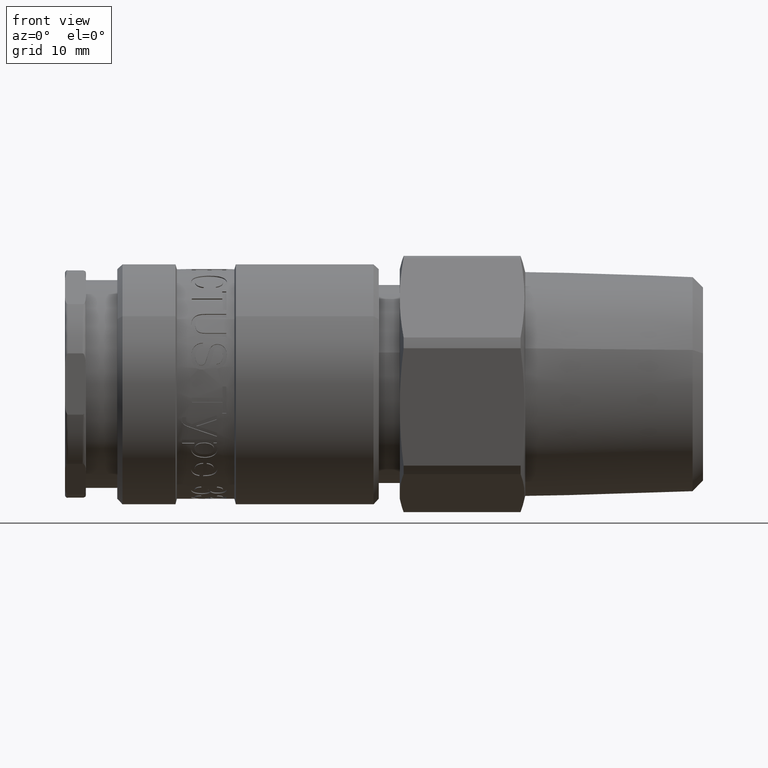
[diagram: clean part render]
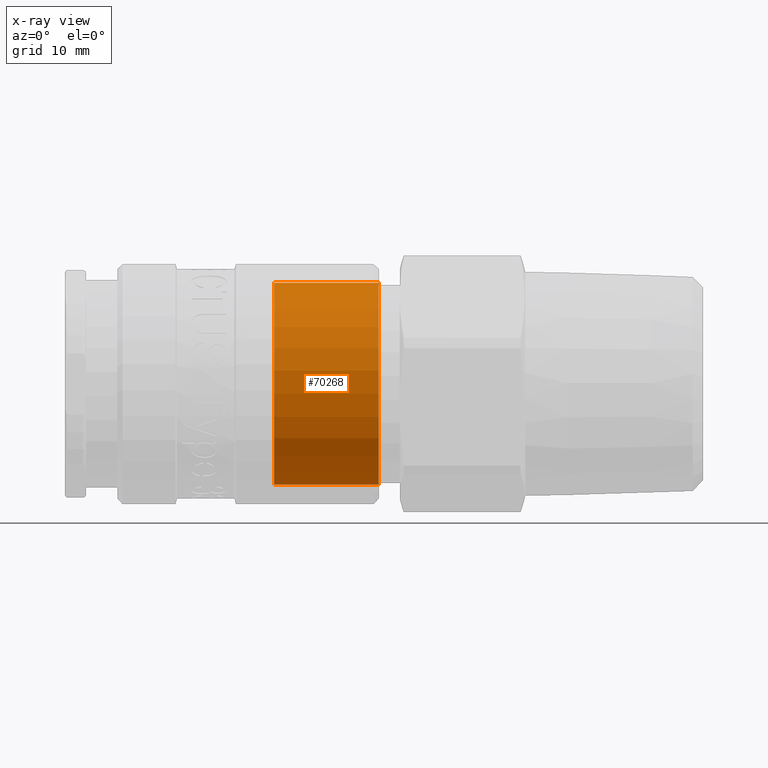
[diagram: x-ray — body ghosted, one internal face saturated and labeled with its STEP entity id]
A machine part, front view, then the same camera in x-ray: the body is ghosted and one INTERNAL B-rep face — a face not visible from any outside direction — is saturated and labeled: STEP entity #70268.
In plain terms, the highlighted cylindrical surface (bore or boss wall) has radius 9.675 mm, axis along (1, 0, 0).
Its self-contained STEP definition (entity closure, byte-faithful):
#70134=CARTESIAN_POINT('',(30.0,-7.992763709819341,5.451729384240839));
#70135=VERTEX_POINT('',#70134);
#70136=CARTESIAN_POINT('',(30.0,0.0,0.0));
#70137=DIRECTION('',(1.0,0.0,0.0));
#70138=DIRECTION('',(0.0,-0.826125448043343,0.563486241265203));
#70139=AXIS2_PLACEMENT_3D('',#70136,#70137,#70138);
#70140=CIRCLE('',#70139,9.675000000000001);
#70141=EDGE_CURVE('',#70135,#70135,#70140,.T.);
#70249=CARTESIAN_POINT('',(25.0,0.0,0.0));
#70250=DIRECTION('',(1.0,0.0,0.0));
#70251=DIRECTION('',(0.0,-0.826125448043343,0.563486241265203));
#70252=AXIS2_PLACEMENT_3D('',#70249,#70250,#70251);
#70253=CYLINDRICAL_SURFACE('',#70252,9.675000000000003);
#70254=CARTESIAN_POINT('',(20.0,-7.992763709819341,5.451729384240839));
#70255=VERTEX_POINT('',#70254);
#70256=CARTESIAN_POINT('',(20.0,0.0,0.0));
#70257=DIRECTION('',(1.0,0.0,0.0));
#70258=DIRECTION('',(0.0,-0.826125448043343,0.563486241265203));
#70259=AXIS2_PLACEMENT_3D('',#70256,#70257,#70258);
#70260=CIRCLE('',#70259,9.675000000000001);
#70261=EDGE_CURVE('',#70255,#70255,#70260,.T.);
#70262=ORIENTED_EDGE('',*,*,#70261,.F.);
#70263=EDGE_LOOP('',(#70262));
#70264=FACE_OUTER_BOUND('',#70263,.T.);
#70265=ORIENTED_EDGE('',*,*,#70141,.T.);
#70266=EDGE_LOOP('',(#70265));
#70267=FACE_BOUND('',#70266,.T.);
#70268=ADVANCED_FACE('',(#70264,#70267),#70253,.F.);